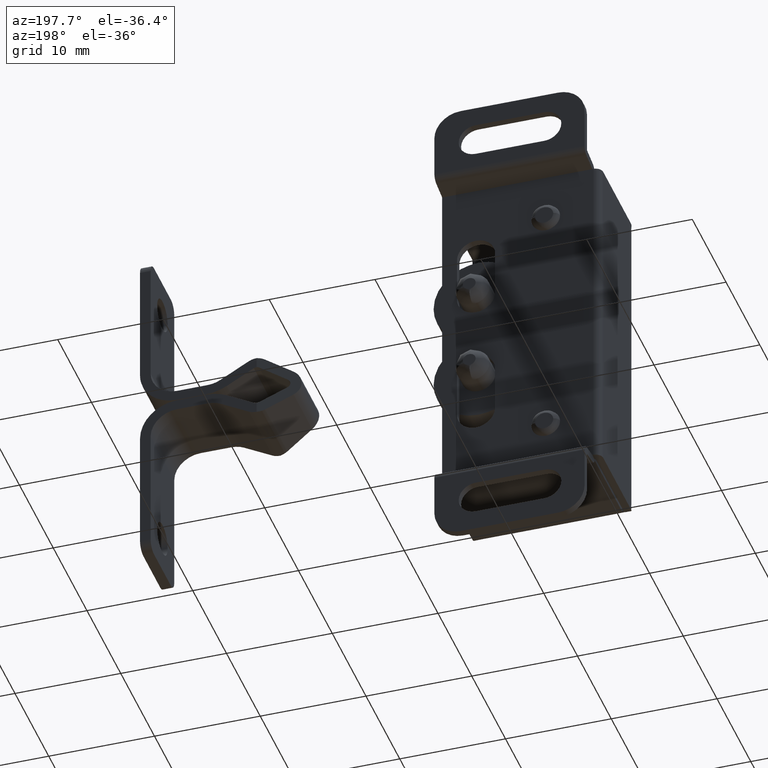
[diagram: clean part render]
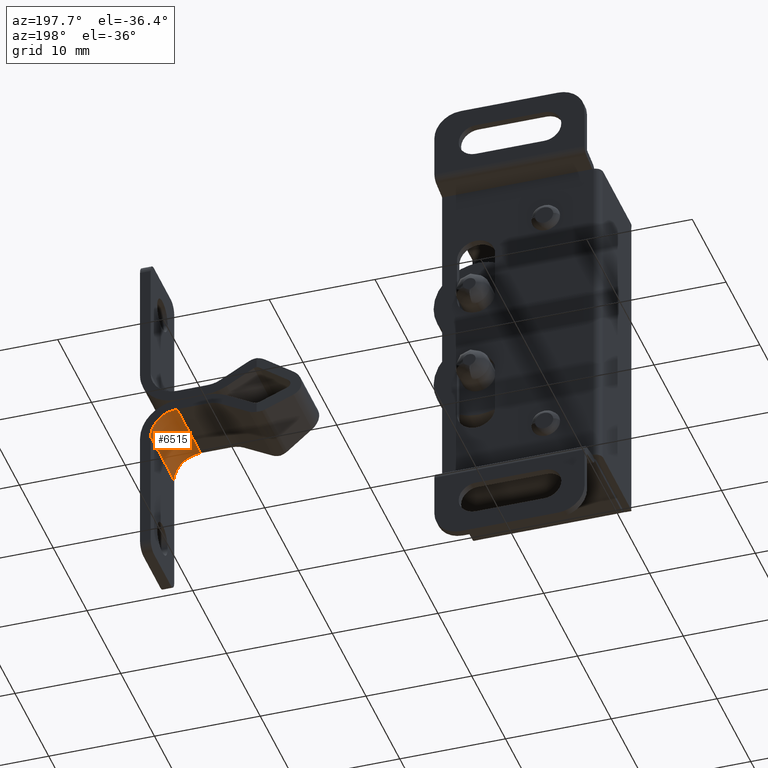
[diagram: same view with one face highlighted and labeled with its STEP entity id]
A machine part, auxiliary view. The second image highlights one B-rep face of the part: STEP entity #6515.
In plain terms, the highlighted face is a freeform B-spline surface patch.
Its self-contained STEP definition (entity closure, byte-faithful):
#6438=CARTESIAN_POINT('',(22.649998999999902,-10.649994000000000,-21.024999999999999));
#6439=VERTEX_POINT('',#6438);
#6446=CARTESIAN_POINT('',(22.649998999999902,-3.649994000000000,-21.024999999999999));
#6447=VERTEX_POINT('',#6446);
#6453=CARTESIAN_POINT('',(22.649998999999902,-3.649994000000000,-21.024999999999999));
#6454=CARTESIAN_POINT('',(22.649998999999902,-10.649994000000000,-21.024999999999999));
#6455=QUASI_UNIFORM_CURVE('',1,(#6453,#6454),.UNSPECIFIED.,.F.,.U.);
#6456=EDGE_CURVE('',#6447,#6439,#6455,.T.);
#6461=CARTESIAN_POINT('',(22.584556629230221,-3.474994000000000,-21.025856687561109));
#6462=CARTESIAN_POINT('',(22.584556629230221,-10.829369000000000,-21.025856687561109));
#6463=CARTESIAN_POINT('',(25.337460709417588,-3.474994000000000,-20.953769357229834));
#6464=CARTESIAN_POINT('',(25.337460709417588,-10.829369000000000,-20.953769357229834));
#6465=CARTESIAN_POINT('',(25.143810217010174,-3.474994000000000,-23.700799925806916));
#6466=CARTESIAN_POINT('',(25.143810217010174,-10.829368999999996,-23.700799925806916));
#6474=(BOUNDED_SURFACE()B_SPLINE_SURFACE(1,2,((#6461,#6463,#6465),(#6462,#6464,#6466)),.UNSPECIFIED.,.F.,.F.,.U.)B_SPLINE_SURFACE_WITH_KNOTS((2,2),(3,3),(0.0,7.354375000000001),(0.0,4.427855544456423),.UNSPECIFIED.)GEOMETRIC_REPRESENTATION_ITEM()RATIONAL_B_SPLINE_SURFACE(((1.0,0.670944246570177,0.996392602291686),(1.0,0.670944246570177,0.996392602291686)))REPRESENTATION_ITEM('')SURFACE());
#6475=CARTESIAN_POINT('',(25.149998999999902,-10.649994000000000,-23.524999999999999));
#6476=VERTEX_POINT('',#6475);
#6477=CARTESIAN_POINT('',(25.149998999999902,-10.649994000000000,-23.524999999999999));
#6478=CARTESIAN_POINT('',(25.150134015933251,-10.649994000000021,-23.269321090391649));
#6479=CARTESIAN_POINT('',(25.080342386302529,-10.649994000000010,-22.819435202895349));
#6480=CARTESIAN_POINT('',(24.822300595359842,-10.649993999999980,-22.246815129016120));
#6481=CARTESIAN_POINT('',(24.519668308742290,-10.649994000000021,-21.843995616373430));
#6482=CARTESIAN_POINT('',(24.209730219989659,-10.649994000000010,-21.559633050277260));
#6483=CARTESIAN_POINT('',(23.878730438712431,-10.649993999999969,-21.335502667673499));
#6484=CARTESIAN_POINT('',(23.552858751186900,-10.649994000000030,-21.183815547006120));
#6485=CARTESIAN_POINT('',(23.130624667009929,-10.649993999999980,-21.058566050387260));
#6486=CARTESIAN_POINT('',(22.844308129003888,-10.649994000000170,-21.024950561958079));
#6487=CARTESIAN_POINT('',(22.649998999999902,-10.649994000000000,-21.024999999999999));
#6488=B_SPLINE_CURVE_WITH_KNOTS('',3,(#6477,#6478,#6479,#6480,#6481,#6482,#6483,#6484,#6485,#6486,#6487),.UNSPECIFIED.,.F.,.U.,(4,1,1,1,1,1,1,1,4),(0.000000051110513,0.766994045246619,1.349912409405632,1.871476224172668,2.270304568608632,2.607776778012670,3.067982815291473,3.344103424739635,3.927015457190306),.UNSPECIFIED.);
#6489=EDGE_CURVE('',#6476,#6439,#6488,.T.);
#6490=ORIENTED_EDGE('',*,*,#6489,.T.);
#6491=ORIENTED_EDGE('',*,*,#6456,.F.);
#6492=CARTESIAN_POINT('',(25.149998999999902,-3.649994000000000,-23.524999999999999));
#6493=VERTEX_POINT('',#6492);
#6494=CARTESIAN_POINT('',(25.149998999999902,-3.649994000000000,-23.524999999999999));
#6495=CARTESIAN_POINT('',(25.150142425604020,-3.649994000000014,-23.269314766211139));
#6496=CARTESIAN_POINT('',(25.094595009959001,-3.649993999999978,-22.911472473218030));
#6497=CARTESIAN_POINT('',(24.913881885389340,-3.649994000000022,-22.443065956028530));
#6498=CARTESIAN_POINT('',(24.731754071898902,-3.649993999999969,-22.121552863512459));
#6499=CARTESIAN_POINT('',(24.488261330635449,-3.649994000000047,-21.817339792687200));
#6500=CARTESIAN_POINT('',(24.165237015528501,-3.649993999999978,-21.517207543420380));
#6501=CARTESIAN_POINT('',(23.746086408726651,-3.649994000000007,-21.255363529245901));
#6502=CARTESIAN_POINT('',(23.212440144278830,-3.649993999999984,-21.068145489441150));
#6503=CARTESIAN_POINT('',(22.844306172093081,-3.649994000000058,-21.024955576708152));
#6504=CARTESIAN_POINT('',(22.649998999999902,-3.649994000000000,-21.024999999999999));
#6505=B_SPLINE_CURVE_WITH_KNOTS('',3,(#6494,#6495,#6496,#6497,#6498,#6499,#6500,#6501,#6502,#6503,#6504),.UNSPECIFIED.,.F.,.U.,(4,1,1,1,1,1,1,1,4),(0.000000051110513,0.766994045246619,1.073794799248762,1.503321038608973,1.871476224172668,2.239614604225137,2.822540402538562,3.344103424739635,3.927015457190306),.UNSPECIFIED.);
#6506=EDGE_CURVE('',#6493,#6447,#6505,.T.);
#6507=ORIENTED_EDGE('',*,*,#6506,.F.);
#6508=CARTESIAN_POINT('',(25.149998999999902,-3.649994000000000,-23.524999999999999));
#6509=CARTESIAN_POINT('',(25.149998999999902,-10.649994000000000,-23.524999999999999));
#6510=QUASI_UNIFORM_CURVE('',1,(#6508,#6509),.UNSPECIFIED.,.F.,.U.);
#6511=EDGE_CURVE('',#6493,#6476,#6510,.T.);
#6512=ORIENTED_EDGE('',*,*,#6511,.T.);
#6513=EDGE_LOOP('',(#6490,#6491,#6507,#6512));
#6514=FACE_OUTER_BOUND('',#6513,.T.);
#6515=ADVANCED_FACE('',(#6514),#6474,.F.);